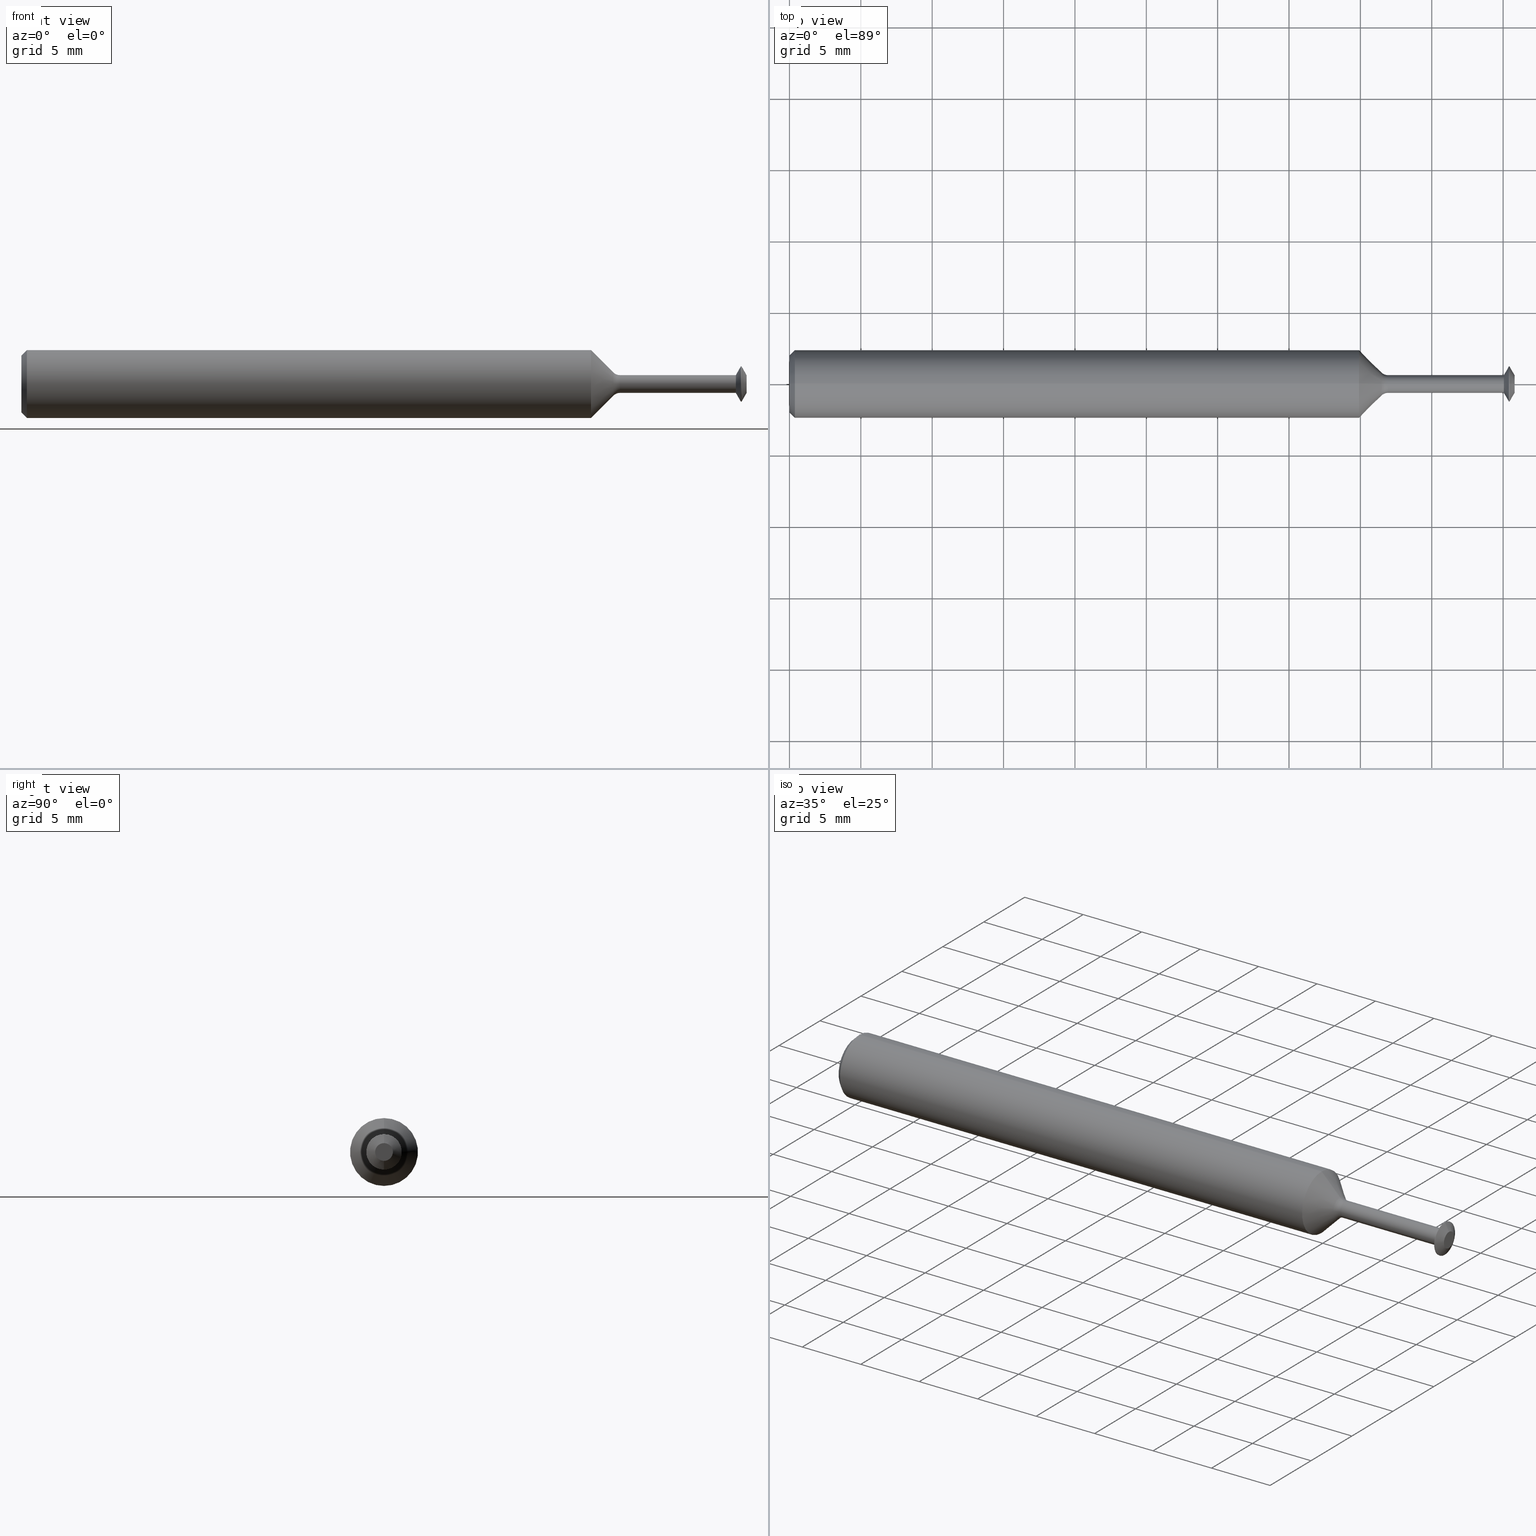
[diagram: canonical four-view strip — front | top / right | iso, engineering-drawing reading convention]
A machine part, canonical four-view strip (front | top / right | iso — engineering-drawing reading convention). The complete STEP part file that produces these views, byte-faithful:
ISO-10303-21;
HEADER;
FILE_DESCRIPTION (( 'STEP AP214' ),
    '1' );
FILE_NAME ('SPTM098ML.STEP',
    '2019-04-02T22:18:20',
    ( '' ),
    ( '' ),
    'SwSTEP 2.0',
    'SolidWorks 2018',
    '' );
FILE_SCHEMA (( 'AUTOMOTIVE_DESIGN' ));
ENDSEC;

DATA;
#1 = DIRECTION ( 'NONE',  ( -1.000000000000000000, -0.0000000000000000000, -0.0000000000000000000 ) ) ;
#2 = DIRECTION ( 'NONE',  ( -1.000000000000000000, -0.0000000000000000000, -0.0000000000000000000 ) ) ;
#3 = COLOUR_RGB ( '',0.7529411764705882248, 0.7529411764705882248, 0.7529411764705882248 ) ;
#4 = AXIS2_PLACEMENT_3D ( 'NONE', #35, #246, #112 ) ;
#5 = ADVANCED_FACE ( 'NONE', ( #342 ), #486, .T. ) ;
#6 = ADVANCED_FACE ( 'NONE', ( #76 ), #319, .T. ) ;
#7 = CLOSED_SHELL ( 'NONE', ( #21, #11, #269, #143, #6, #142, #131, #207, #40, #105, #70, #146, #5, #119, #113, #108, #376, #49 ) ) ;
#8 = DIRECTION ( 'NONE',  ( 0.0000000000000000000, 0.0000000000000000000, 1.000000000000000000 ) ) ;
#9 =( NAMED_UNIT ( * ) SI_UNIT ( $, .STERADIAN. ) SOLID_ANGLE_UNIT ( ) );
#10 = AXIS2_PLACEMENT_3D ( 'NONE', #293, #440, #429 ) ;
#11 = ADVANCED_FACE ( 'NONE', ( #428 ), #340, .T. ) ;
#12 = CARTESIAN_POINT ( 'NONE',  ( 1.970380621325877213, 4.500576986866479174E-18, 0.02449999999999963665 ) ) ;
#13 = ORIENTED_EDGE ( 'NONE', *, *, #16, .F. ) ;
#14 = CARTESIAN_POINT ( 'NONE',  ( 1.650545649722265917, 6.062001655779354908E-18, -0.04949999999999964151 ) ) ;
#15 = CIRCLE ( 'NONE', #45, 0.02449999999999960543 ) ;
#16 = EDGE_CURVE ( 'NONE', #262, #410, #491, .T. ) ;
#17 = CIRCLE ( 'NONE', #88, 0.09360000000000001652 ) ;
#18 = LINE ( 'NONE', #225, #47 ) ;
#19 = ORIENTED_EDGE ( 'NONE', *, *, #24, .T. ) ;
#20 = CIRCLE ( 'NONE', #164, 0.02500000000000003955 ) ;
#21 = ADVANCED_FACE ( 'NONE', ( #89 ), #409, .T. ) ;
#22 = AXIS2_PLACEMENT_3D ( 'NONE', #172, #335, #501 ) ;
#23 = DIRECTION ( 'NONE',  ( -1.000000000000000000, -0.0000000000000000000, -0.0000000000000000000 ) ) ;
#24 = EDGE_CURVE ( 'NONE', #210, #387, #347, .T. ) ;
#25 = ORIENTED_EDGE ( 'NONE', *, *, #241, .T. ) ;
#26 = AXIS2_PLACEMENT_3D ( 'NONE', #330, #378, #271 ) ;
#27 = EDGE_CURVE ( 'NONE', #173, #298, #267, .T. ) ;
#28 = CARTESIAN_POINT ( 'NONE',  ( 1.650545649722265917, 0.0000000000000000000, 0.0000000000000000000 ) ) ;
#29 = DIRECTION ( 'NONE',  ( -1.000000000000000000, 0.0000000000000000000, -0.0000000000000000000 ) ) ;
#30 = VECTOR ( 'NONE', #77, 39.37007874015748143 ) ;
#31 = EDGE_CURVE ( 'NONE', #80, #298, #324, .T. ) ;
#32 = ORIENTED_EDGE ( 'NONE', *, *, #247, .F. ) ;
#33 = CARTESIAN_POINT ( 'NONE',  ( 1.632867980192602264, 0.0000000000000000000, 0.0000000000000000000 ) ) ;
#34 = AXIS2_PLACEMENT_3D ( 'NONE', #457, #395, #64 ) ;
#35 = CARTESIAN_POINT ( 'NONE',  ( 2.000000000000000000, 0.0000000000000000000, 0.0000000000000000000 ) ) ;
#36 = DIRECTION ( 'NONE',  ( 0.0000000000000000000, 0.0000000000000000000, 1.000000000000000000 ) ) ;
#37 = APPLICATION_PROTOCOL_DEFINITION ( 'draft international standard', 'automotive_design', 1998, #360 ) ;
#38 = DIRECTION ( 'NONE',  ( 0.0000000000000000000, 0.0000000000000000000, -1.000000000000000000 ) ) ;
#39 = UNCERTAINTY_MEASURE_WITH_UNIT (LENGTH_MEASURE( 1.000000000000000082E-05 ), #400, 'distance_accuracy_value', 'NONE');
#40 = ADVANCED_FACE ( 'NONE', ( #43 ), #333, .F. ) ;
#41 = EDGE_LOOP ( 'NONE', ( #346, #260, #268, #177 ) ) ;
#42 = EDGE_CURVE ( 'NONE', #203, #156, #364, .T. ) ;
#43 = FACE_OUTER_BOUND ( 'NONE', #401, .T. ) ;
#44 = DIMENSIONAL_EXPONENTS ( 1.000000000000000000, 0.0000000000000000000, 0.0000000000000000000, 0.0000000000000000000, 0.0000000000000000000, 0.0000000000000000000, 0.0000000000000000000 ) ;
#45 = AXIS2_PLACEMENT_3D ( 'NONE', #93, #416, #412 ) ;
#46 = CONICAL_SURFACE ( 'NONE', #34, 0.03182233047033589113, 0.7853981633974520538 ) ;
#47 = VECTOR ( 'NONE', #214, 39.37007874015748143 ) ;
#48 = ORIENTED_EDGE ( 'NONE', *, *, #235, .F. ) ;
#49 = ADVANCED_FACE ( 'NONE', ( #447 ), #288, .T. ) ;
#50 = DIRECTION ( 'NONE',  ( -1.000000000000000000, -0.0000000000000000000, -0.0000000000000000000 ) ) ;
#51 = DIRECTION ( 'NONE',  ( 0.0000000000000000000, 0.0000000000000000000, -1.000000000000000000 ) ) ;
#52 = DIRECTION ( 'NONE',  ( 0.7071067811865551223, 0.0000000000000000000, -0.7071067811865398012 ) ) ;
#53 = CONICAL_SURFACE ( 'NONE', #4, 0.02449999999999964706, 1.049815545074581857 ) ;
#54 = ORIENTED_EDGE ( 'NONE', *, *, #75, .F. ) ;
#55 = LINE ( 'NONE', #446, #186 ) ;
#56 = CARTESIAN_POINT ( 'NONE',  ( 0.0000000000000000000, 1.054420894065873337E-17, 0.07860000000000036402 ) ) ;
#57 = AXIS2_PLACEMENT_3D ( 'NONE', #167, #170, #153 ) ;
#58 = SURFACE_STYLE_USAGE ( .BOTH. , #466 ) ;
#59 = ORIENTED_EDGE ( 'NONE', *, *, #254, .T. ) ;
#60 = ORIENTED_EDGE ( 'NONE', *, *, #441, .T. ) ;
#61 = CARTESIAN_POINT ( 'NONE',  ( 1.650545649722265917, 3.000384657910967884E-18, -0.02449999999999960543 ) ) ;
#62 = VECTOR ( 'NONE', #424, 39.37007874015748143 ) ;
#63 =( NAMED_UNIT ( * ) PLANE_ANGLE_UNIT ( ) SI_UNIT ( $, .RADIAN. ) );
#64 = DIRECTION ( 'NONE',  ( 0.0000000000000000000, 0.0000000000000000000, 1.000000000000000000 ) ) ;
#65 = EDGE_CURVE ( 'NONE', #80, #338, #220, .T. ) ;
#66 = CIRCLE ( 'NONE', #176, 0.04899999999999964106 ) ;
#67 = ORIENTED_EDGE ( 'NONE', *, *, #422, .T. ) ;
#68 = DIRECTION ( 'NONE',  ( 0.0000000000000000000, 0.0000000000000000000, 1.000000000000000000 ) ) ;
#69 = AXIS2_PLACEMENT_3D ( 'NONE', #404, #371, #339 ) ;
#70 = ADVANCED_FACE ( 'NONE', ( #196 ), #430, .T. ) ;
#71 = DIMENSIONAL_EXPONENTS ( 1.000000000000000000, 0.0000000000000000000, 0.0000000000000000000, 0.0000000000000000000, 0.0000000000000000000, 0.0000000000000000000, 0.0000000000000000000 ) ;
#72 = EDGE_CURVE ( 'NONE', #343, #80, #369, .T. ) ;
#73 = ORIENTED_EDGE ( 'NONE', *, *, #132, .T. ) ;
#74 = CARTESIAN_POINT ( 'NONE',  ( 1.650545649722265917, 0.0000000000000000000, 0.0000000000000000000 ) ) ;
#75 = EDGE_CURVE ( 'NONE', #187, #448, #394, .T. ) ;
#76 = FACE_OUTER_BOUND ( 'NONE', #232, .T. ) ;
#77 = DIRECTION ( 'NONE',  ( -1.000000000000000000, -0.0000000000000000000, -0.0000000000000000000 ) ) ;
#78 = EDGE_CURVE ( 'NONE', #210, #203, #87, .T. ) ;
#79 = ORIENTED_EDGE ( 'NONE', *, *, #221, .T. ) ;
#80 = VERTEX_POINT ( 'NONE', #124 ) ;
#81 = VECTOR ( 'NONE', #282, 39.37007874015748143 ) ;
#82 = AXIS2_PLACEMENT_3D ( 'NONE', #475, #359, #356 ) ;
#83 = CONICAL_SURFACE ( 'NONE', #10, 0.04899999999999964106, 1.049815545074582079 ) ;
#84 = EDGE_CURVE ( 'NONE', #156, #372, #138, .T. ) ;
#85 = DIRECTION ( 'NONE',  ( -1.000000000000000000, -0.0000000000000000000, -0.0000000000000000000 ) ) ;
#86 = CARTESIAN_POINT ( 'NONE',  ( 2.000000000000000000, 0.0000000000000000000, 0.02449999999999964706 ) ) ;
#87 = LINE ( 'NONE', #86, #95 ) ;
#88 = AXIS2_PLACEMENT_3D ( 'NONE', #165, #318, #261 ) ;
#89 = FACE_OUTER_BOUND ( 'NONE', #370, .T. ) ;
#90 = DIRECTION ( 'NONE',  ( -0.7071067811865449082, 8.659560562354964906E-17, -0.7071067811865501263 ) ) ;
#91 = DIMENSIONAL_EXPONENTS ( 1.000000000000000000, 0.0000000000000000000, 0.0000000000000000000, 0.0000000000000000000, 0.0000000000000000000, 0.0000000000000000000, 0.0000000000000000000 ) ;
#92 = CARTESIAN_POINT ( 'NONE',  ( 1.970380621325877213, 0.0000000000000000000, 0.0000000000000000000 ) ) ;
#93 = CARTESIAN_POINT ( 'NONE',  ( 1.650545649722265917, 0.0000000000000000000, 0.0000000000000000000 ) ) ;
#94 = DIRECTION ( 'NONE',  ( 0.0000000000000000000, -1.224646799147353454E-16, 1.000000000000000000 ) ) ;
#95 = VECTOR ( 'NONE', #431, 39.37007874015748854 ) ;
#96 = ORIENTED_EDGE ( 'NONE', *, *, #42, .T. ) ;
#97 = EDGE_CURVE ( 'NONE', #405, #203, #66, .T. ) ;
#98 = ORIENTED_EDGE ( 'NONE', *, *, #453, .T. ) ;
#99 =( LENGTH_UNIT ( ) NAMED_UNIT ( * ) SI_UNIT ( $, .METRE. ) );
#100 = DIRECTION ( 'NONE',  ( -1.000000000000000000, -0.0000000000000000000, -0.0000000000000000000 ) ) ;
#101 = DIRECTION ( 'NONE',  ( 0.0000000000000000000, 0.0000000000000000000, 1.000000000000000000 ) ) ;
#102 = MANIFOLD_SOLID_BREP ( '265B75B8-8693-4456-9829-0295200D480A-GAAFaceID9', #7 ) ;
#103 = AXIS2_PLACEMENT_3D ( 'NONE', #375, #322, #408 ) ;
#104 = ORIENTED_EDGE ( 'NONE', *, *, #344, .F. ) ;
#105 = ADVANCED_FACE ( 'NONE', ( #323 ), #53, .T. ) ;
#106 = APPLICATION_PROTOCOL_DEFINITION ( 'draft international standard', 'automotive_design', 1998, #458 ) ;
#107 = DIRECTION ( 'NONE',  ( -1.000000000000000000, -0.0000000000000000000, -0.0000000000000000000 ) ) ;
#108 = ADVANCED_FACE ( 'NONE', ( #435 ), #336, .T. ) ;
#109 = ORIENTED_EDGE ( 'NONE', *, *, #396, .T. ) ;
#110 = VERTEX_POINT ( 'NONE', #126 ) ;
#111 = AXIS2_PLACEMENT_3D ( 'NONE', #399, #450, #38 ) ;
#112 = DIRECTION ( 'NONE',  ( 0.0000000000000000000, 0.0000000000000000000, 1.000000000000000000 ) ) ;
#113 = ADVANCED_FACE ( 'NONE', ( #148 ), #297, .T. ) ;
#114 = PRESENTATION_LAYER_ASSIGNMENT (  '', '', ( #290 ) ) ;
#115 = DIRECTION ( 'NONE',  ( -1.000000000000000000, -0.0000000000000000000, -0.0000000000000000000 ) ) ;
#116 = SURFACE_STYLE_FILL_AREA ( #479 ) ;
#117 = FILL_AREA_STYLE_COLOUR ( '', #3 ) ;
#118 = ORIENTED_EDGE ( 'NONE', *, *, #391, .T. ) ;
#119 = ADVANCED_FACE ( 'NONE', ( #257 ), #278, .F. ) ;
#120 =( GEOMETRIC_REPRESENTATION_CONTEXT ( 3 ) GLOBAL_UNCERTAINTY_ASSIGNED_CONTEXT ( ( #316 ) ) GLOBAL_UNIT_ASSIGNED_CONTEXT ( ( #159, #326, #498 ) ) REPRESENTATION_CONTEXT ( 'NONE', 'WORKASPACE' ) );
#121 = CARTESIAN_POINT ( 'NONE',  ( 2.000000000000000000, 0.0000000000000000000, 0.0000000000000000000 ) ) ;
#122 = VECTOR ( 'NONE', #348, 39.37007874015748854 ) ;
#123 = DIRECTION ( 'NONE',  ( -1.000000000000000000, -0.0000000000000000000, -0.0000000000000000000 ) ) ;
#124 = CARTESIAN_POINT ( 'NONE',  ( 1.632867980192602264, 3.897111515190616455E-18, -0.03182233047033591194 ) ) ;
#125 = CONICAL_SURFACE ( 'NONE', #69, 0.02449999999999964706, 1.049815545074581857 ) ;
#126 = CARTESIAN_POINT ( 'NONE',  ( 0.01499999999999997863, 1.146269404001922775E-17, -0.09360000000000001652 ) ) ;
#127 = CARTESIAN_POINT ( 'NONE',  ( 0.0000000000000000000, 0.0000000000000000000, 0.0000000000000000000 ) ) ;
#128 = LINE ( 'NONE', #264, #122 ) ;
#129 = DIRECTION ( 'NONE',  ( 0.0000000000000000000, 0.0000000000000000000, 1.000000000000000000 ) ) ;
#130 = CARTESIAN_POINT ( 'NONE',  ( 1.984440310662938689, 0.0000000000000000000, 0.0000000000000000000 ) ) ;
#131 = ADVANCED_FACE ( 'NONE', ( #258 ), #251, .T. ) ;
#132 = EDGE_CURVE ( 'NONE', #262, #298, #361, .T. ) ;
#133 = ORIENTED_EDGE ( 'NONE', *, *, #97, .T. ) ;
#134 = CARTESIAN_POINT ( 'NONE',  ( 0.0000000000000000000, 0.0000000000000000000, 0.0000000000000000000 ) ) ;
#135 = ORIENTED_EDGE ( 'NONE', *, *, #97, .F. ) ;
#136 = DIRECTION ( 'NONE',  ( 1.000000000000000000, 0.0000000000000000000, 0.0000000000000000000 ) ) ;
#137 = CARTESIAN_POINT ( 'NONE',  ( 1.985940310662938524, 6.000769315821987383E-18, -0.04899999999999964106 ) ) ;
#138 = CIRCLE ( 'NONE', #216, 0.04899999999999964106 ) ;
#139 = EDGE_CURVE ( 'NONE', #110, #223, #17, .T. ) ;
#140 = EDGE_LOOP ( 'NONE', ( #381, #133, #96, #315 ) ) ;
#141 = DIRECTION ( 'NONE',  ( -1.000000000000000000, -0.0000000000000000000, -0.0000000000000000000 ) ) ;
#142 = ADVANCED_FACE ( 'NONE', ( #386 ), #83, .T. ) ;
#143 = ADVANCED_FACE ( 'NONE', ( #437 ), #334, .F. ) ;
#144 = DIRECTION ( 'NONE',  ( -1.000000000000000000, -0.0000000000000000000, -0.0000000000000000000 ) ) ;
#145 = AXIS2_PLACEMENT_3D ( 'NONE', #253, #107, #36 ) ;
#146 = ADVANCED_FACE ( 'NONE', ( #484 ), #163, .T. ) ;
#147 = CIRCLE ( 'NONE', #57, 0.02449999999999964706 ) ;
#148 = FACE_OUTER_BOUND ( 'NONE', #41, .T. ) ;
#149 = EDGE_LOOP ( 'NONE', ( #152, #308, #325, #135 ) ) ;
#150 = CARTESIAN_POINT ( 'NONE',  ( 0.0000000000000000000, 0.0000000000000000000, 0.0000000000000000000 ) ) ;
#151 = AXIS2_PLACEMENT_3D ( 'NONE', #175, #29, #443 ) ;
#152 = ORIENTED_EDGE ( 'NONE', *, *, #396, .F. ) ;
#153 = DIRECTION ( 'NONE',  ( 0.0000000000000000000, 0.0000000000000000000, 1.000000000000000000 ) ) ;
#154 = PRODUCT_RELATED_PRODUCT_CATEGORY ( 'part', '', ( #476 ) ) ;
#155 = ORIENTED_EDGE ( 'NONE', *, *, #31, .T. ) ;
#156 = VERTEX_POINT ( 'NONE', #243 ) ;
#157 = MECHANICAL_DESIGN_GEOMETRIC_PRESENTATION_REPRESENTATION (  '', ( #306 ), #120 ) ;
#158 = EDGE_LOOP ( 'NONE', ( #168, #341, #222, #423 ) ) ;
#159 =( CONVERSION_BASED_UNIT ( 'INCH', #426 ) LENGTH_UNIT ( ) NAMED_UNIT ( #91 ) );
#160 = EDGE_CURVE ( 'NONE', #343, #227, #273, .T. ) ;
#161 = EDGE_LOOP ( 'NONE', ( #48, #59, #217, #289 ) ) ;
#162 = CARTESIAN_POINT ( 'NONE',  ( 1.632867980192602264, 0.0000000000000000000, 0.0000000000000000000 ) ) ;
#163 = CONICAL_SURFACE ( 'NONE', #436, 0.04899999999999964106, 1.049815545074582079 ) ;
#164 = AXIS2_PLACEMENT_3D ( 'NONE', #313, #321, #327 ) ;
#165 = CARTESIAN_POINT ( 'NONE',  ( 0.01499999999999997863, 0.0000000000000000000, 0.0000000000000000000 ) ) ;
#166 = ORIENTED_EDGE ( 'NONE', *, *, #221, .F. ) ;
#167 = CARTESIAN_POINT ( 'NONE',  ( 2.000000000000000000, 0.0000000000000000000, 0.0000000000000000000 ) ) ;
#168 = ORIENTED_EDGE ( 'NONE', *, *, #31, .F. ) ;
#169 =( GEOMETRIC_REPRESENTATION_CONTEXT ( 3 ) GLOBAL_UNCERTAINTY_ASSIGNED_CONTEXT ( ( #384 ) ) GLOBAL_UNIT_ASSIGNED_CONTEXT ( ( #418, #388, #9 ) ) REPRESENTATION_CONTEXT ( 'NONE', 'WORKASPACE' ) );
#170 = DIRECTION ( 'NONE',  ( -1.000000000000000000, -0.0000000000000000000, -0.0000000000000000000 ) ) ;
#171 = EDGE_CURVE ( 'NONE', #343, #173, #20, .T. ) ;
#172 = CARTESIAN_POINT ( 'NONE',  ( 1.632867980192602264, 0.0000000000000000000, 0.0000000000000000000 ) ) ;
#173 = VERTEX_POINT ( 'NONE', #275 ) ;
#174 = DIRECTION ( 'NONE',  ( 1.000000000000000000, 0.0000000000000000000, 0.0000000000000000000 ) ) ;
#175 = CARTESIAN_POINT ( 'NONE',  ( 2.000000000000000000, 0.02449999999999964706, 0.0000000000000000000 ) ) ;
#176 = AXIS2_PLACEMENT_3D ( 'NONE', #485, #1, #487 ) ;
#177 = ORIENTED_EDGE ( 'NONE', *, *, #254, .F. ) ;
#178 = EDGE_LOOP ( 'NONE', ( #354, #331 ) ) ;
#179 = FILL_AREA_STYLE_COLOUR ( '', #199 ) ;
#180 = LENGTH_MEASURE_WITH_UNIT ( LENGTH_MEASURE( 0.02539999999999999897 ), #259 );
#181 = DIRECTION ( 'NONE',  ( -1.000000000000000000, -0.0000000000000000000, -0.0000000000000000000 ) ) ;
#182 = ORIENTED_EDGE ( 'NONE', *, *, #132, .F. ) ;
#183 = CARTESIAN_POINT ( 'NONE',  ( 0.0000000000000000000, 0.0000000000000000000, -0.07860000000000036402 ) ) ;
#184 = EDGE_CURVE ( 'NONE', #227, #223, #193, .T. ) ;
#185 = DIRECTION ( 'NONE',  ( -1.000000000000000000, -0.0000000000000000000, -0.0000000000000000000 ) ) ;
#186 = VECTOR ( 'NONE', #185, 39.37007874015748143 ) ;
#187 = VERTEX_POINT ( 'NONE', #183 ) ;
#188 = ORIENTED_EDGE ( 'NONE', *, *, #235, .T. ) ;
#189 = DIRECTION ( 'NONE',  ( 0.0000000000000000000, 0.0000000000000000000, 1.000000000000000000 ) ) ;
#190 = ORIENTED_EDGE ( 'NONE', *, *, #213, .F. ) ;
#191 = AXIS2_PLACEMENT_3D ( 'NONE', #463, #201, #8 ) ;
#192 = VECTOR ( 'NONE', #90, 39.37007874015748143 ) ;
#193 = LINE ( 'NONE', #305, #239 ) ;
#194 = AXIS2_PLACEMENT_3D ( 'NONE', #134, #380, #301 ) ;
#195 = DIRECTION ( 'NONE',  ( 0.0000000000000000000, 0.0000000000000000000, -1.000000000000000000 ) ) ;
#196 = FACE_OUTER_BOUND ( 'NONE', #140, .T. ) ;
#197 = ORIENTED_EDGE ( 'NONE', *, *, #42, .F. ) ;
#198 = CARTESIAN_POINT ( 'NONE',  ( 0.0000000000000000000, 0.0000000000000000000, 0.02449999999999961930 ) ) ;
#199 = COLOUR_RGB ( '',0.7529411764705882248, 0.7529411764705882248, 0.7529411764705882248 ) ;
#200 = CARTESIAN_POINT ( 'NONE',  ( 0.0000000000000000000, 0.0000000000000000000, 0.0000000000000000000 ) ) ;
#201 = DIRECTION ( 'NONE',  ( -1.000000000000000000, -0.0000000000000000000, -0.0000000000000000000 ) ) ;
#202 = PRODUCT_DEFINITION_FORMATION_WITH_SPECIFIED_SOURCE ( 'ANY', '', #476, .NOT_KNOWN. ) ;
#203 = VERTEX_POINT ( 'NONE', #304 ) ;
#204 = ORIENTED_EDGE ( 'NONE', *, *, #208, .F. ) ;
#205 = ORIENTED_EDGE ( 'NONE', *, *, #139, .T. ) ;
#206 = CARTESIAN_POINT ( 'NONE',  ( 0.0000000000000000000, 0.0000000000000000000, 0.0000000000000000000 ) ) ;
#207 = ADVANCED_FACE ( 'NONE', ( #332 ), #125, .T. ) ;
#208 = EDGE_CURVE ( 'NONE', #448, #223, #128, .T. ) ;
#209 = DIRECTION ( 'NONE',  ( -1.000000000000000000, -0.0000000000000000000, -0.0000000000000000000 ) ) ;
#210 = VERTEX_POINT ( 'NONE', #494 ) ;
#211 = SURFACE_STYLE_FILL_AREA ( #328 ) ;
#212 = DIRECTION ( 'NONE',  ( 0.0000000000000000000, 0.0000000000000000000, 1.000000000000000000 ) ) ;
#213 = EDGE_CURVE ( 'NONE', #223, #110, #248, .T. ) ;
#214 = DIRECTION ( 'NONE',  ( 0.4977310399126184115, 1.062174661273172183E-16, 0.8673314314075694087 ) ) ;
#215 = ORIENTED_EDGE ( 'NONE', *, *, #160, .F. ) ;
#216 = AXIS2_PLACEMENT_3D ( 'NONE', #350, #123, #68 ) ;
#217 = ORIENTED_EDGE ( 'NONE', *, *, #184, .T. ) ;
#218 = AXIS2_PLACEMENT_3D ( 'NONE', #472, #85, #219 ) ;
#219 = DIRECTION ( 'NONE',  ( 0.0000000000000000000, 0.0000000000000000000, 1.000000000000000000 ) ) ;
#220 = LINE ( 'NONE', #488, #192 ) ;
#221 = EDGE_CURVE ( 'NONE', #410, #156, #18, .T. ) ;
#222 = ORIENTED_EDGE ( 'NONE', *, *, #171, .T. ) ;
#223 = VERTEX_POINT ( 'NONE', #477 ) ;
#224 = AXIS2_PLACEMENT_3D ( 'NONE', #407, #442, #474 ) ;
#225 = CARTESIAN_POINT ( 'NONE',  ( 1.984440310662938689, 6.000769315821987383E-18, 0.04899999999999964106 ) ) ;
#226 = EDGE_CURVE ( 'NONE', #387, #210, #147, .T. ) ;
#227 = VERTEX_POINT ( 'NONE', #311 ) ;
#228 = CARTESIAN_POINT ( 'NONE',  ( 1.970380621325877213, 0.0000000000000000000, -0.02449999999999963665 ) ) ;
#229 = EDGE_LOOP ( 'NONE', ( #60, #393, #481, #197 ) ) ;
#230 = PRODUCT_CONTEXT ( 'NONE', #458, 'mechanical' ) ;
#231 = AXIS2_PLACEMENT_3D ( 'NONE', #206, #337, #467 ) ;
#232 = EDGE_LOOP ( 'NONE', ( #459, #73, #499, #495 ) ) ;
#233 = AXIS2_PLACEMENT_3D ( 'NONE', #240, #50, #129 ) ;
#234 = LINE ( 'NONE', #444, #292 ) ;
#235 = EDGE_CURVE ( 'NONE', #338, #110, #55, .T. ) ;
#236 =( LENGTH_UNIT ( ) NAMED_UNIT ( * ) SI_UNIT ( $, .METRE. ) );
#237 = ORIENTED_EDGE ( 'NONE', *, *, #78, .F. ) ;
#238 = DIRECTION ( 'NONE',  ( 0.0000000000000000000, 0.0000000000000000000, -1.000000000000000000 ) ) ;
#239 = VECTOR ( 'NONE', #362, 39.37007874015748143 ) ;
#240 = CARTESIAN_POINT ( 'NONE',  ( 1.985940310662938524, 0.0000000000000000000, 0.0000000000000000000 ) ) ;
#241 = EDGE_CURVE ( 'NONE', #410, #173, #483, .T. ) ;
#242 = CARTESIAN_POINT ( 'NONE',  ( 2.000000000000000000, 3.000384657910972121E-18, -0.02449999999999964706 ) ) ;
#243 = CARTESIAN_POINT ( 'NONE',  ( 1.984440310662938689, 0.0000000000000000000, 0.04899999999999964106 ) ) ;
#244 = ORIENTED_EDGE ( 'NONE', *, *, #441, .F. ) ;
#245 = ORIENTED_EDGE ( 'NONE', *, *, #250, .F. ) ;
#246 = DIRECTION ( 'NONE',  ( -1.000000000000000000, -0.0000000000000000000, -0.0000000000000000000 ) ) ;
#247 = EDGE_CURVE ( 'NONE', #80, #343, #389, .T. ) ;
#248 = CIRCLE ( 'NONE', #277, 0.09360000000000001652 ) ;
#249 = DIRECTION ( 'NONE',  ( 0.0000000000000000000, 0.0000000000000000000, 1.000000000000000000 ) ) ;
#250 = EDGE_CURVE ( 'NONE', #448, #187, #299, .T. ) ;
#251 = CYLINDRICAL_SURFACE ( 'NONE', #500, 0.04899999999999964106 ) ;
#252 = ORIENTED_EDGE ( 'NONE', *, *, #344, .T. ) ;
#253 = CARTESIAN_POINT ( 'NONE',  ( 0.0000000000000000000, 0.0000000000000000000, 0.0000000000000000000 ) ) ;
#254 = EDGE_CURVE ( 'NONE', #338, #227, #291, .T. ) ;
#255 = ORIENTED_EDGE ( 'NONE', *, *, #208, .T. ) ;
#256 = CARTESIAN_POINT ( 'NONE',  ( 0.0000000000000000000, 6.000769315821987383E-18, -0.04899999999999964106 ) ) ;
#257 = FACE_OUTER_BOUND ( 'NONE', #158, .T. ) ;
#258 = FACE_OUTER_BOUND ( 'NONE', #229, .T. ) ;
#259 =( LENGTH_UNIT ( ) NAMED_UNIT ( * ) SI_UNIT ( $, .METRE. ) );
#260 = ORIENTED_EDGE ( 'NONE', *, *, #247, .T. ) ;
#261 = DIRECTION ( 'NONE',  ( 0.0000000000000000000, 0.0000000000000000000, -1.000000000000000000 ) ) ;
#262 = VERTEX_POINT ( 'NONE', #228 ) ;
#263 = PRODUCT_DEFINITION ( 'UNKNOWN', '', #202, #287 ) ;
#264 = CARTESIAN_POINT ( 'NONE',  ( 0.0000000000000000000, 9.625723841298240530E-18, 0.07860000000000036402 ) ) ;
#265 =( NAMED_UNIT ( * ) SI_UNIT ( $, .STERADIAN. ) SOLID_ANGLE_UNIT ( ) );
#266 = DIRECTION ( 'NONE',  ( -1.000000000000000000, -0.0000000000000000000, -0.0000000000000000000 ) ) ;
#267 = CIRCLE ( 'NONE', #473, 0.02449999999999960543 ) ;
#268 = ORIENTED_EDGE ( 'NONE', *, *, #160, .T. ) ;
#269 = ADVANCED_FACE ( 'NONE', ( #411 ), #46, .T. ) ;
#270 = DIRECTION ( 'NONE',  ( 0.0000000000000000000, 0.0000000000000000000, -1.000000000000000000 ) ) ;
#271 = DIRECTION ( 'NONE',  ( 0.0000000000000000000, 0.0000000000000000000, 1.000000000000000000 ) ) ;
#272 = CIRCLE ( 'NONE', #233, 0.04899999999999964106 ) ;
#273 = LINE ( 'NONE', #406, #81 ) ;
#274 = AXIS2_PLACEMENT_3D ( 'NONE', #130, #421, #101 ) ;
#275 = CARTESIAN_POINT ( 'NONE',  ( 1.650545649722265917, 0.0000000000000000000, 0.02449999999999960543 ) ) ;
#276 = DIRECTION ( 'NONE',  ( -1.000000000000000000, -0.0000000000000000000, -0.0000000000000000000 ) ) ;
#277 = AXIS2_PLACEMENT_3D ( 'NONE', #427, #402, #438 ) ;
#278 = TOROIDAL_SURFACE ( 'NONE', #218, 0.04949999999999964151, 0.02500000000000003955 ) ;
#279 = LENGTH_MEASURE_WITH_UNIT ( LENGTH_MEASURE( 0.02539999999999999897 ), #99 );
#280 = VECTOR ( 'NONE', #115, 39.37007874015748143 ) ;
#281 = AXIS2_PLACEMENT_3D ( 'NONE', #127, #366, #451 ) ;
#282 = DIRECTION ( 'NONE',  ( -0.7071067811865449082, 0.0000000000000000000, 0.7071067811865501263 ) ) ;
#283 = ORIENTED_EDGE ( 'NONE', *, *, #226, .F. ) ;
#284 = CARTESIAN_POINT ( 'NONE',  ( 1.984440310662938689, 6.000769315821987383E-18, -0.04899999999999964106 ) ) ;
#285 = DIRECTION ( 'NONE',  ( 0.0000000000000000000, 0.0000000000000000000, 1.000000000000000000 ) ) ;
#286 = AXIS2_PLACEMENT_3D ( 'NONE', #74, #100, #212 ) ;
#287 = PRODUCT_DEFINITION_CONTEXT ( 'detailed design', #360, 'design' ) ;
#288 = CONICAL_SURFACE ( 'NONE', #345, 0.07860000000000036402, 0.7853981633974375098 ) ;
#289 = ORIENTED_EDGE ( 'NONE', *, *, #213, .T. ) ;
#290 = STYLED_ITEM ( 'NONE', ( #497 ), #349 ) ;
#291 = CIRCLE ( 'NONE', #368, 0.09360000000000001652 ) ;
#292 = VECTOR ( 'NONE', #52, 39.37007874015748854 ) ;
#293 = CARTESIAN_POINT ( 'NONE',  ( 1.984440310662938689, 0.0000000000000000000, 0.0000000000000000000 ) ) ;
#294 = ORIENTED_EDGE ( 'NONE', *, *, #16, .T. ) ;
#295 = AXIS2_PLACEMENT_3D ( 'NONE', #92, #144, #285 ) ;
#296 = LINE ( 'NONE', #242, #470 ) ;
#297 = CONICAL_SURFACE ( 'NONE', #22, 0.03182233047033589113, 0.7853981633974520538 ) ;
#298 = VERTEX_POINT ( 'NONE', #61 ) ;
#299 = CIRCLE ( 'NONE', #469, 0.07860000000000036402 ) ;
#300 = DIRECTION ( 'NONE',  ( 0.0000000000000000000, 0.0000000000000000000, 1.000000000000000000 ) ) ;
#301 = DIRECTION ( 'NONE',  ( 1.000000000000000000, 0.0000000000000000000, 0.0000000000000000000 ) ) ;
#302 = EDGE_LOOP ( 'NONE', ( #19, #109, #244, #237 ) ) ;
#303 =( GEOMETRIC_REPRESENTATION_CONTEXT ( 3 ) GLOBAL_UNCERTAINTY_ASSIGNED_CONTEXT ( ( #39 ) ) GLOBAL_UNIT_ASSIGNED_CONTEXT ( ( #400, #63, #265 ) ) REPRESENTATION_CONTEXT ( 'NONE', 'WORKASPACE' ) );
#304 = CARTESIAN_POINT ( 'NONE',  ( 1.985940310662938524, 0.0000000000000000000, 0.04899999999999964106 ) ) ;
#305 = CARTESIAN_POINT ( 'NONE',  ( 0.0000000000000000000, 0.0000000000000000000, 0.09360000000000001652 ) ) ;
#306 = STYLED_ITEM ( 'NONE', ( #307 ), #102 ) ;
#307 = PRESENTATION_STYLE_ASSIGNMENT (( #58 ) ) ;
#308 = ORIENTED_EDGE ( 'NONE', *, *, #226, .T. ) ;
#309 = DIRECTION ( 'NONE',  ( 1.000000000000000000, 0.0000000000000000000, 0.0000000000000000000 ) ) ;
#310 = SHAPE_DEFINITION_REPRESENTATION ( #398, #349 ) ;
#311 = CARTESIAN_POINT ( 'NONE',  ( 1.571090310662938583, 0.0000000000000000000, 0.09360000000000003040 ) ) ;
#312 = DIRECTION ( 'NONE',  ( 0.0000000000000000000, 0.0000000000000000000, 1.000000000000000000 ) ) ;
#313 = CARTESIAN_POINT ( 'NONE',  ( 1.650545649722265917, 0.0000000000000000000, 0.04949999999999964151 ) ) ;
#314 = ORIENTED_EDGE ( 'NONE', *, *, #453, .F. ) ;
#315 = ORIENTED_EDGE ( 'NONE', *, *, #391, .F. ) ;
#316 = UNCERTAINTY_MEASURE_WITH_UNIT (LENGTH_MEASURE( 1.000000000000000082E-05 ), #159, 'distance_accuracy_value', 'NONE');
#317 = EDGE_CURVE ( 'NONE', #405, #372, #425, .T. ) ;
#318 = DIRECTION ( 'NONE',  ( 1.000000000000000000, 0.0000000000000000000, 0.0000000000000000000 ) ) ;
#319 = CYLINDRICAL_SURFACE ( 'NONE', #281, 0.02449999999999961930 ) ;
#320 = DIRECTION ( 'NONE',  ( 0.0000000000000000000, 0.0000000000000000000, 1.000000000000000000 ) ) ;
#321 = DIRECTION ( 'NONE',  ( 0.0000000000000000000, -1.000000000000000000, 0.0000000000000000000 ) ) ;
#322 = DIRECTION ( 'NONE',  ( -1.000000000000000000, -0.0000000000000000000, -0.0000000000000000000 ) ) ;
#323 = FACE_OUTER_BOUND ( 'NONE', #149, .T. ) ;
#324 = CIRCLE ( 'NONE', #382, 0.02500000000000003955 ) ;
#325 = ORIENTED_EDGE ( 'NONE', *, *, #78, .T. ) ;
#326 =( NAMED_UNIT ( * ) PLANE_ANGLE_UNIT ( ) SI_UNIT ( $, .RADIAN. ) );
#327 = DIRECTION ( 'NONE',  ( 0.0000000000000000000, 0.0000000000000000000, -1.000000000000000000 ) ) ;
#328 = FILL_AREA_STYLE ('',( #179 ) ) ;
#329 = CARTESIAN_POINT ( 'NONE',  ( 1.984440310662938689, 0.0000000000000000000, 0.0000000000000000000 ) ) ;
#330 = CARTESIAN_POINT ( 'NONE',  ( 0.0000000000000000000, 0.0000000000000000000, 0.0000000000000000000 ) ) ;
#331 = ORIENTED_EDGE ( 'NONE', *, *, #250, .T. ) ;
#332 = FACE_OUTER_BOUND ( 'NONE', #302, .T. ) ;
#333 = PLANE ( 'NONE',  #151 ) ;
#334 = TOROIDAL_SURFACE ( 'NONE', #286, 0.04949999999999964151, 0.02500000000000003955 ) ;
#335 = DIRECTION ( 'NONE',  ( -1.000000000000000000, -0.0000000000000000000, -0.0000000000000000000 ) ) ;
#336 = CYLINDRICAL_SURFACE ( 'NONE', #145, 0.09360000000000001652 ) ;
#337 = DIRECTION ( 'NONE',  ( 1.000000000000000000, 0.0000000000000000000, 0.0000000000000000000 ) ) ;
#338 = VERTEX_POINT ( 'NONE', #454 ) ;
#339 = DIRECTION ( 'NONE',  ( 0.0000000000000000000, 0.0000000000000000000, 1.000000000000000000 ) ) ;
#340 = CYLINDRICAL_SURFACE ( 'NONE', #26, 0.09360000000000001652 ) ;
#341 = ORIENTED_EDGE ( 'NONE', *, *, #72, .F. ) ;
#342 = FACE_OUTER_BOUND ( 'NONE', #445, .T. ) ;
#343 = VERTEX_POINT ( 'NONE', #490 ) ;
#344 = EDGE_CURVE ( 'NONE', #298, #173, #15, .T. ) ;
#345 = AXIS2_PLACEMENT_3D ( 'NONE', #150, #174, #51 ) ;
#346 = ORIENTED_EDGE ( 'NONE', *, *, #65, .F. ) ;
#347 = CIRCLE ( 'NONE', #480, 0.02449999999999964706 ) ;
#348 = DIRECTION ( 'NONE',  ( 0.7071067811865551223, 8.659560562354836716E-17, 0.7071067811865398012 ) ) ;
#349 = ADVANCED_BREP_SHAPE_REPRESENTATION ( 'SPTM098ML', ( #102, #194 ), #169 ) ;
#350 = CARTESIAN_POINT ( 'NONE',  ( 1.984440310662938689, 0.0000000000000000000, 0.0000000000000000000 ) ) ;
#351 = EDGE_CURVE ( 'NONE', #410, #262, #468, .T. ) ;
#352 = DIRECTION ( 'NONE',  ( 0.0000000000000000000, 0.0000000000000000000, 1.000000000000000000 ) ) ;
#353 = EDGE_LOOP ( 'NONE', ( #166, #13, #98, #118 ) ) ;
#354 = ORIENTED_EDGE ( 'NONE', *, *, #75, .T. ) ;
#355 = EDGE_CURVE ( 'NONE', #227, #338, #374, .T. ) ;
#356 = DIRECTION ( 'NONE',  ( 0.0000000000000000000, 0.0000000000000000000, 1.000000000000000000 ) ) ;
#357 = VECTOR ( 'NONE', #266, 39.37007874015748143 ) ;
#358 = SURFACE_SIDE_STYLE ('',( #211 ) ) ;
#359 = DIRECTION ( 'NONE',  ( -1.000000000000000000, -0.0000000000000000000, -0.0000000000000000000 ) ) ;
#360 = APPLICATION_CONTEXT ( 'automotive_design' ) ;
#361 = LINE ( 'NONE', #420, #419 ) ;
#362 = DIRECTION ( 'NONE',  ( -1.000000000000000000, -0.0000000000000000000, -0.0000000000000000000 ) ) ;
#363 = ORIENTED_EDGE ( 'NONE', *, *, #422, .F. ) ;
#364 = LINE ( 'NONE', #413, #30 ) ;
#365 = ORIENTED_EDGE ( 'NONE', *, *, #355, .T. ) ;
#366 = DIRECTION ( 'NONE',  ( -1.000000000000000000, -0.0000000000000000000, -0.0000000000000000000 ) ) ;
#367 = ORIENTED_EDGE ( 'NONE', *, *, #355, .F. ) ;
#368 = AXIS2_PLACEMENT_3D ( 'NONE', #496, #276, #249 ) ;
#369 = CIRCLE ( 'NONE', #465, 0.03182233047033589113 ) ;
#370 = EDGE_LOOP ( 'NONE', ( #245, #255, #403, #363 ) ) ;
#371 = DIRECTION ( 'NONE',  ( -1.000000000000000000, -0.0000000000000000000, -0.0000000000000000000 ) ) ;
#372 = VERTEX_POINT ( 'NONE', #284 ) ;
#373 = AXIS2_PLACEMENT_3D ( 'NONE', #471, #136, #238 ) ;
#374 = CIRCLE ( 'NONE', #82, 0.09360000000000001652 ) ;
#375 = CARTESIAN_POINT ( 'NONE',  ( 0.0000000000000000000, 0.0000000000000000000, 0.0000000000000000000 ) ) ;
#376 = ADVANCED_FACE ( 'NONE', ( #449 ), #456, .F. ) ;
#377 = SURFACE_STYLE_USAGE ( .BOTH. , #358 ) ;
#378 = DIRECTION ( 'NONE',  ( -1.000000000000000000, -0.0000000000000000000, -0.0000000000000000000 ) ) ;
#379 = DIRECTION ( 'NONE',  ( -1.000000000000000000, -0.0000000000000000000, -0.0000000000000000000 ) ) ;
#380 = DIRECTION ( 'NONE',  ( 0.0000000000000000000, 0.0000000000000000000, 1.000000000000000000 ) ) ;
#381 = ORIENTED_EDGE ( 'NONE', *, *, #317, .F. ) ;
#382 = AXIS2_PLACEMENT_3D ( 'NONE', #14, #432, #94 ) ;
#383 = ORIENTED_EDGE ( 'NONE', *, *, #65, .T. ) ;
#384 = UNCERTAINTY_MEASURE_WITH_UNIT (LENGTH_MEASURE( 1.000000000000000082E-05 ), #418, 'distance_accuracy_value', 'NONE');
#385 = ORIENTED_EDGE ( 'NONE', *, *, #72, .T. ) ;
#386 = FACE_OUTER_BOUND ( 'NONE', #415, .T. ) ;
#387 = VERTEX_POINT ( 'NONE', #461 ) ;
#388 =( NAMED_UNIT ( * ) PLANE_ANGLE_UNIT ( ) SI_UNIT ( $, .RADIAN. ) );
#389 = CIRCLE ( 'NONE', #414, 0.03182233047033589113 ) ;
#390 = DIRECTION ( 'NONE',  ( -0.4977310399126185780, 1.062174661273171936E-16, -0.8673314314075692977 ) ) ;
#391 = EDGE_CURVE ( 'NONE', #372, #156, #417, .T. ) ;
#392 = MECHANICAL_DESIGN_GEOMETRIC_PRESENTATION_REPRESENTATION (  '', ( #290 ), #303 ) ;
#393 = ORIENTED_EDGE ( 'NONE', *, *, #317, .T. ) ;
#394 = CIRCLE ( 'NONE', #111, 0.07860000000000036402 ) ;
#395 = DIRECTION ( 'NONE',  ( -1.000000000000000000, -0.0000000000000000000, -0.0000000000000000000 ) ) ;
#396 = EDGE_CURVE ( 'NONE', #387, #405, #296, .T. ) ;
#397 = ORIENTED_EDGE ( 'NONE', *, *, #171, .F. ) ;
#398 = PRODUCT_DEFINITION_SHAPE ( 'NONE', 'NONE',  #263 ) ;
#399 = CARTESIAN_POINT ( 'NONE',  ( 0.0000000000000000000, 0.0000000000000000000, 0.0000000000000000000 ) ) ;
#400 =( CONVERSION_BASED_UNIT ( 'INCH', #279 ) LENGTH_UNIT ( ) NAMED_UNIT ( #44 ) );
#401 = EDGE_LOOP ( 'NONE', ( #482, #283 ) ) ;
#402 = DIRECTION ( 'NONE',  ( 1.000000000000000000, 0.0000000000000000000, 0.0000000000000000000 ) ) ;
#403 = ORIENTED_EDGE ( 'NONE', *, *, #139, .F. ) ;
#404 = CARTESIAN_POINT ( 'NONE',  ( 2.000000000000000000, 0.0000000000000000000, 0.0000000000000000000 ) ) ;
#405 = VERTEX_POINT ( 'NONE', #137 ) ;
#406 = CARTESIAN_POINT ( 'NONE',  ( 1.632867980192602264, 0.0000000000000000000, 0.03182233047033589113 ) ) ;
#407 = CARTESIAN_POINT ( 'NONE',  ( 1.970380621325877213, 0.0000000000000000000, 0.0000000000000000000 ) ) ;
#408 = DIRECTION ( 'NONE',  ( 0.0000000000000000000, 0.0000000000000000000, 1.000000000000000000 ) ) ;
#409 = CONICAL_SURFACE ( 'NONE', #231, 0.07860000000000036402, 0.7853981633974375098 ) ;
#410 = VERTEX_POINT ( 'NONE', #12 ) ;
#411 = FACE_OUTER_BOUND ( 'NONE', #460, .T. ) ;
#412 = DIRECTION ( 'NONE',  ( 0.0000000000000000000, 0.0000000000000000000, 1.000000000000000000 ) ) ;
#413 = CARTESIAN_POINT ( 'NONE',  ( 0.0000000000000000000, 0.0000000000000000000, 0.04899999999999964106 ) ) ;
#414 = AXIS2_PLACEMENT_3D ( 'NONE', #33, #2, #320 ) ;
#415 = EDGE_LOOP ( 'NONE', ( #452, #79, #433, #314 ) ) ;
#416 = DIRECTION ( 'NONE',  ( -1.000000000000000000, -0.0000000000000000000, -0.0000000000000000000 ) ) ;
#417 = CIRCLE ( 'NONE', #274, 0.04899999999999964106 ) ;
#418 =( CONVERSION_BASED_UNIT ( 'INCH', #180 ) LENGTH_UNIT ( ) NAMED_UNIT ( #71 ) );
#419 = VECTOR ( 'NONE', #23, 39.37007874015748143 ) ;
#420 = CARTESIAN_POINT ( 'NONE',  ( 0.0000000000000000000, 3.000384657910969040E-18, -0.02449999999999961930 ) ) ;
#421 = DIRECTION ( 'NONE',  ( -1.000000000000000000, -0.0000000000000000000, -0.0000000000000000000 ) ) ;
#422 = EDGE_CURVE ( 'NONE', #187, #110, #234, .T. ) ;
#423 = ORIENTED_EDGE ( 'NONE', *, *, #27, .T. ) ;
#424 = DIRECTION ( 'NONE',  ( 0.4977310399126184115, 0.0000000000000000000, -0.8673314314075694087 ) ) ;
#425 = LINE ( 'NONE', #256, #357 ) ;
#426 = LENGTH_MEASURE_WITH_UNIT ( LENGTH_MEASURE( 0.02539999999999999897 ), #236 );
#427 = CARTESIAN_POINT ( 'NONE',  ( 0.01499999999999997863, 0.0000000000000000000, 0.0000000000000000000 ) ) ;
#428 = FACE_OUTER_BOUND ( 'NONE', #455, .T. ) ;
#429 = DIRECTION ( 'NONE',  ( 0.0000000000000000000, 0.0000000000000000000, -1.000000000000000000 ) ) ;
#430 = CYLINDRICAL_SURFACE ( 'NONE', #191, 0.04899999999999964106 ) ;
#431 = DIRECTION ( 'NONE',  ( -0.4977310399126185780, 0.0000000000000000000, 0.8673314314075692977 ) ) ;
#432 = DIRECTION ( 'NONE',  ( -0.0000000000000000000, 1.000000000000000000, 1.224646799147353207E-16 ) ) ;
#433 = ORIENTED_EDGE ( 'NONE', *, *, #84, .T. ) ;
#434 = DIRECTION ( 'NONE',  ( -1.000000000000000000, -0.0000000000000000000, -0.0000000000000000000 ) ) ;
#435 = FACE_OUTER_BOUND ( 'NONE', #161, .T. ) ;
#436 = AXIS2_PLACEMENT_3D ( 'NONE', #329, #309, #270 ) ;
#437 = FACE_OUTER_BOUND ( 'NONE', #439, .T. ) ;
#438 = DIRECTION ( 'NONE',  ( 0.0000000000000000000, 0.0000000000000000000, -1.000000000000000000 ) ) ;
#439 = EDGE_LOOP ( 'NONE', ( #32, #155, #252, #397 ) ) ;
#440 = DIRECTION ( 'NONE',  ( 1.000000000000000000, 0.0000000000000000000, 0.0000000000000000000 ) ) ;
#441 = EDGE_CURVE ( 'NONE', #203, #405, #272, .T. ) ;
#442 = DIRECTION ( 'NONE',  ( -1.000000000000000000, -0.0000000000000000000, -0.0000000000000000000 ) ) ;
#443 = DIRECTION ( 'NONE',  ( -0.0000000000000000000, 0.0000000000000000000, 1.000000000000000000 ) ) ;
#444 = CARTESIAN_POINT ( 'NONE',  ( 0.0000000000000000000, 0.0000000000000000000, -0.07860000000000036402 ) ) ;
#445 = EDGE_LOOP ( 'NONE', ( #182, #294, #25, #104 ) ) ;
#446 = CARTESIAN_POINT ( 'NONE',  ( 0.0000000000000000000, 1.146269404001922775E-17, -0.09360000000000001652 ) ) ;
#447 = FACE_OUTER_BOUND ( 'NONE', #492, .T. ) ;
#448 = VERTEX_POINT ( 'NONE', #56 ) ;
#449 = FACE_OUTER_BOUND ( 'NONE', #178, .T. ) ;
#450 = DIRECTION ( 'NONE',  ( -1.000000000000000000, -0.0000000000000000000, -0.0000000000000000000 ) ) ;
#451 = DIRECTION ( 'NONE',  ( 0.0000000000000000000, 0.0000000000000000000, 1.000000000000000000 ) ) ;
#452 = ORIENTED_EDGE ( 'NONE', *, *, #351, .F. ) ;
#453 = EDGE_CURVE ( 'NONE', #262, #372, #478, .T. ) ;
#454 = CARTESIAN_POINT ( 'NONE',  ( 1.571090310662938583, 1.146269404001922930E-17, -0.09360000000000003040 ) ) ;
#455 = EDGE_LOOP ( 'NONE', ( #365, #188, #205, #464 ) ) ;
#456 = PLANE ( 'NONE',  #373 ) ;
#457 = CARTESIAN_POINT ( 'NONE',  ( 1.632867980192602264, 0.0000000000000000000, 0.0000000000000000000 ) ) ;
#458 = APPLICATION_CONTEXT ( 'automotive_design' ) ;
#459 = ORIENTED_EDGE ( 'NONE', *, *, #351, .T. ) ;
#460 = EDGE_LOOP ( 'NONE', ( #385, #383, #367, #215 ) ) ;
#461 = CARTESIAN_POINT ( 'NONE',  ( 2.000000000000000000, 4.500576986866479945E-18, -0.02449999999999964706 ) ) ;
#462 = CARTESIAN_POINT ( 'NONE',  ( 0.0000000000000000000, 0.0000000000000000000, 0.0000000000000000000 ) ) ;
#463 = CARTESIAN_POINT ( 'NONE',  ( 0.0000000000000000000, 0.0000000000000000000, 0.0000000000000000000 ) ) ;
#464 = ORIENTED_EDGE ( 'NONE', *, *, #184, .F. ) ;
#465 = AXIS2_PLACEMENT_3D ( 'NONE', #162, #434, #352 ) ;
#466 = SURFACE_SIDE_STYLE ('',( #116 ) ) ;
#467 = DIRECTION ( 'NONE',  ( 0.0000000000000000000, 0.0000000000000000000, -1.000000000000000000 ) ) ;
#468 = CIRCLE ( 'NONE', #224, 0.02449999999999963665 ) ;
#469 = AXIS2_PLACEMENT_3D ( 'NONE', #200, #209, #195 ) ;
#470 = VECTOR ( 'NONE', #390, 39.37007874015748854 ) ;
#471 = CARTESIAN_POINT ( 'NONE',  ( 0.0000000000000000000, 0.0000000000000000000, 0.0000000000000000000 ) ) ;
#472 = CARTESIAN_POINT ( 'NONE',  ( 1.650545649722265917, 0.0000000000000000000, 0.0000000000000000000 ) ) ;
#473 = AXIS2_PLACEMENT_3D ( 'NONE', #28, #379, #312 ) ;
#474 = DIRECTION ( 'NONE',  ( 0.0000000000000000000, 0.0000000000000000000, 1.000000000000000000 ) ) ;
#475 = CARTESIAN_POINT ( 'NONE',  ( 1.571090310662938583, 0.0000000000000000000, 0.0000000000000000000 ) ) ;
#476 = PRODUCT ( 'SPTM098ML', 'SPTM098ML', '', ( #230 ) ) ;
#477 = CARTESIAN_POINT ( 'NONE',  ( 0.01499999999999997863, 0.0000000000000000000, 0.09360000000000001652 ) ) ;
#478 = LINE ( 'NONE', #493, #62 ) ;
#479 = FILL_AREA_STYLE ('',( #117 ) ) ;
#480 = AXIS2_PLACEMENT_3D ( 'NONE', #121, #181, #300 ) ;
#481 = ORIENTED_EDGE ( 'NONE', *, *, #84, .F. ) ;
#482 = ORIENTED_EDGE ( 'NONE', *, *, #24, .F. ) ;
#483 = LINE ( 'NONE', #198, #280 ) ;
#484 = FACE_OUTER_BOUND ( 'NONE', #353, .T. ) ;
#485 = CARTESIAN_POINT ( 'NONE',  ( 1.985940310662938524, 0.0000000000000000000, 0.0000000000000000000 ) ) ;
#486 = CYLINDRICAL_SURFACE ( 'NONE', #103, 0.02449999999999961930 ) ;
#487 = DIRECTION ( 'NONE',  ( 0.0000000000000000000, 0.0000000000000000000, 1.000000000000000000 ) ) ;
#488 = CARTESIAN_POINT ( 'NONE',  ( 1.632867980192602264, 3.897111515190613373E-18, -0.03182233047033589113 ) ) ;
#489 = PRESENTATION_LAYER_ASSIGNMENT (  '', '', ( #306 ) ) ;
#490 = CARTESIAN_POINT ( 'NONE',  ( 1.632867980192602264, 0.0000000000000000000, 0.03182233047033591194 ) ) ;
#491 = CIRCLE ( 'NONE', #295, 0.02449999999999963665 ) ;
#492 = EDGE_LOOP ( 'NONE', ( #204, #54, #67, #190 ) ) ;
#493 = CARTESIAN_POINT ( 'NONE',  ( 1.984440310662938689, 0.0000000000000000000, -0.04899999999999964106 ) ) ;
#494 = CARTESIAN_POINT ( 'NONE',  ( 2.000000000000000000, 0.0000000000000000000, 0.02449999999999964706 ) ) ;
#495 = ORIENTED_EDGE ( 'NONE', *, *, #241, .F. ) ;
#496 = CARTESIAN_POINT ( 'NONE',  ( 1.571090310662938583, 0.0000000000000000000, 0.0000000000000000000 ) ) ;
#497 = PRESENTATION_STYLE_ASSIGNMENT (( #377 ) ) ;
#498 =( NAMED_UNIT ( * ) SI_UNIT ( $, .STERADIAN. ) SOLID_ANGLE_UNIT ( ) );
#499 = ORIENTED_EDGE ( 'NONE', *, *, #27, .F. ) ;
#500 = AXIS2_PLACEMENT_3D ( 'NONE', #462, #141, #189 ) ;
#501 = DIRECTION ( 'NONE',  ( 0.0000000000000000000, 0.0000000000000000000, 1.000000000000000000 ) ) ;
ENDSEC;
END-ISO-10303-21;
